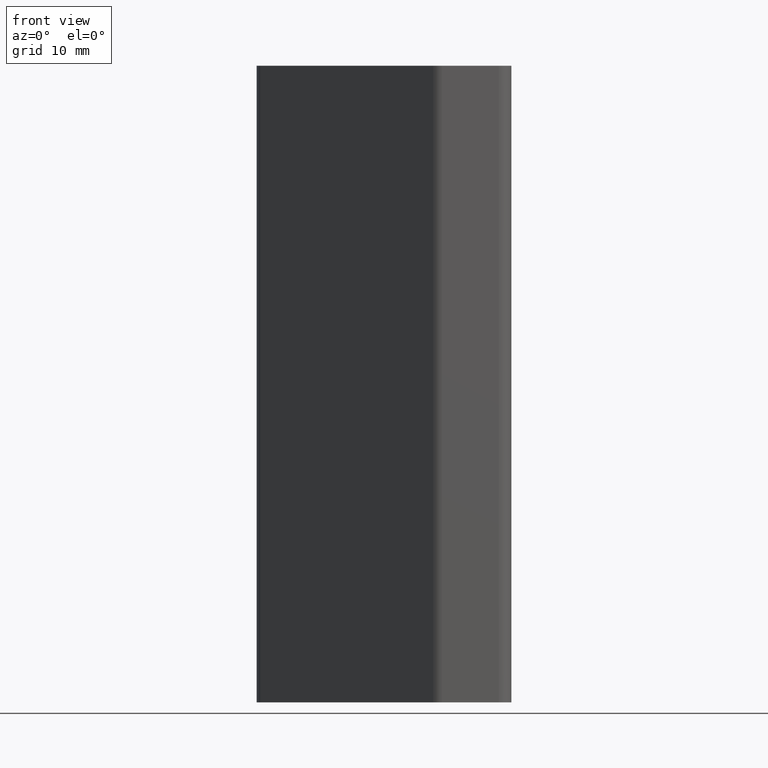
[diagram: clean part render]
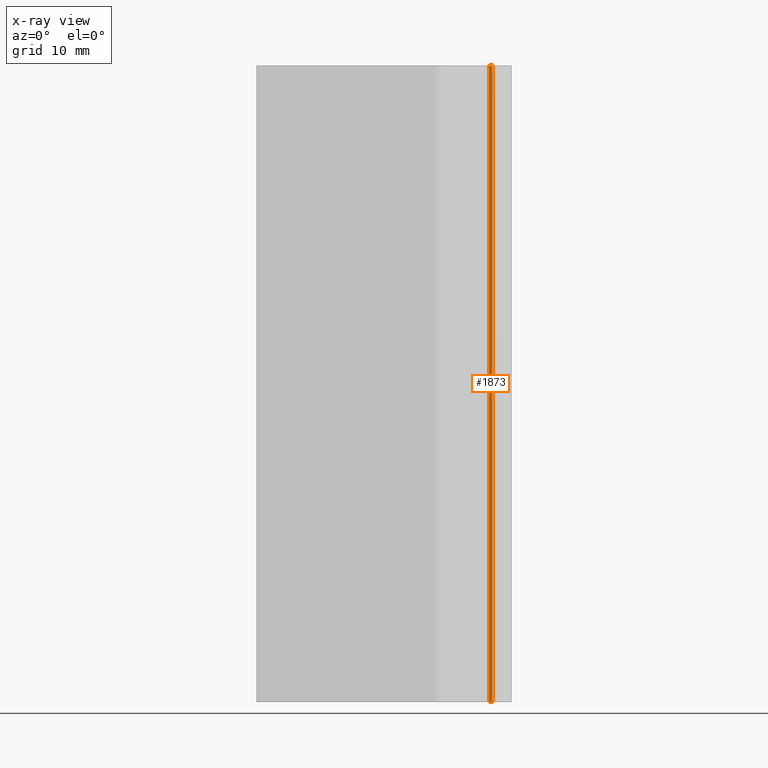
[diagram: x-ray — body ghosted, one internal face saturated and labeled with its STEP entity id]
A machine part, front view, then the same camera in x-ray: the body is ghosted and one INTERNAL B-rep face — a face not visible from any outside direction — is saturated and labeled: STEP entity #1873.
In plain terms, the highlighted planar face has unit normal (0, -1, 0).
Its self-contained STEP definition (entity closure, byte-faithful):
#38=PLANE('',#2006);
#106=FACE_OUTER_BOUND('',#204,.T.);
#204=EDGE_LOOP('',(#1350,#1351,#1352,#1353));
#337=LINE('',#2892,#529);
#338=LINE('',#2896,#530);
#339=LINE('',#2898,#531);
#340=LINE('',#2899,#532);
#529=VECTOR('',#2319,100.);
#530=VECTOR('',#2324,0.500001995948849);
#531=VECTOR('',#2325,100.);
#532=VECTOR('',#2326,0.500001995948849);
#818=VERTEX_POINT('',#2889);
#819=VERTEX_POINT('',#2891);
#820=VERTEX_POINT('',#2895);
#821=VERTEX_POINT('',#2897);
#1036=EDGE_CURVE('',#819,#818,#337,.T.);
#1038=EDGE_CURVE('',#820,#818,#338,.T.);
#1039=EDGE_CURVE('',#821,#820,#339,.T.);
#1040=EDGE_CURVE('',#819,#821,#340,.T.);
#1350=ORIENTED_EDGE('',*,*,#1038,.F.);
#1351=ORIENTED_EDGE('',*,*,#1039,.F.);
#1352=ORIENTED_EDGE('',*,*,#1040,.F.);
#1353=ORIENTED_EDGE('',*,*,#1036,.T.);
#1873=ADVANCED_FACE('',(#106),#38,.F.);
#2006=AXIS2_PLACEMENT_3D('',#2894,#2322,#2323);
#2319=DIRECTION('',(0.,0.,1.));
#2322=DIRECTION('center_axis',(0.,-1.,0.));
#2323=DIRECTION('ref_axis',(1.,0.,0.));
#2324=DIRECTION('',(-1.,0.,0.));
#2325=DIRECTION('',(0.,0.,1.));
#2326=DIRECTION('',(1.,0.,0.));
#2889=CARTESIAN_POINT('',(16.4999980040512,7.99999999999999,100.));
#2891=CARTESIAN_POINT('',(16.4999980040512,7.99999999999999,0.));
#2892=CARTESIAN_POINT('',(16.4999980040512,7.99999999999999,0.));
#2894=CARTESIAN_POINT('Origin',(16.4999980040512,7.99999999999999,0.));
#2895=CARTESIAN_POINT('',(17.,7.99999999999999,100.));
#2896=CARTESIAN_POINT('',(8.24999900202558,7.99999999999999,100.));
#2897=CARTESIAN_POINT('',(17.,7.99999999999999,0.));
#2898=CARTESIAN_POINT('',(17.,7.99999999999999,0.));
#2899=CARTESIAN_POINT('',(8.24999900202558,7.99999999999999,0.));